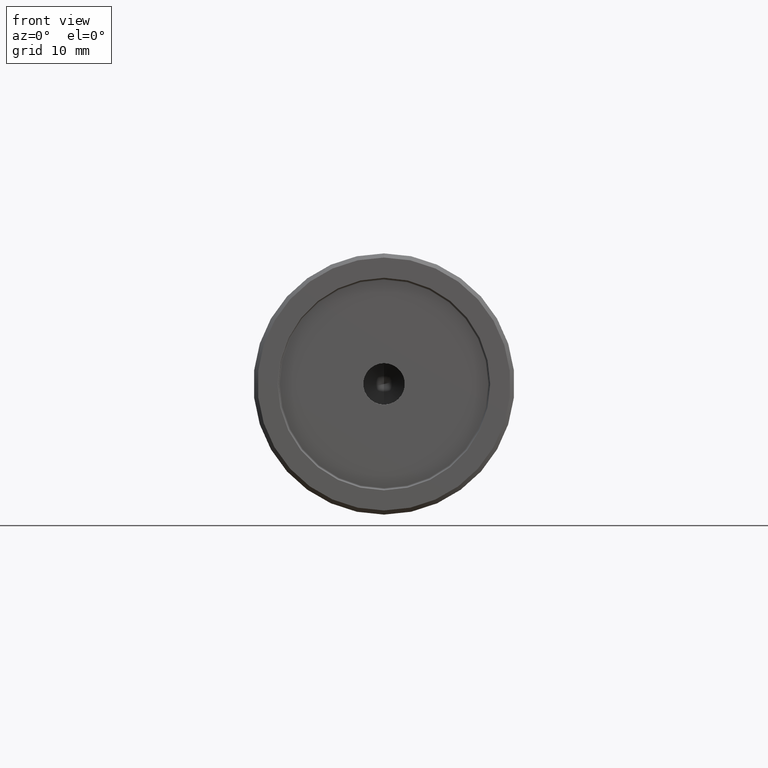
[diagram: clean part render]
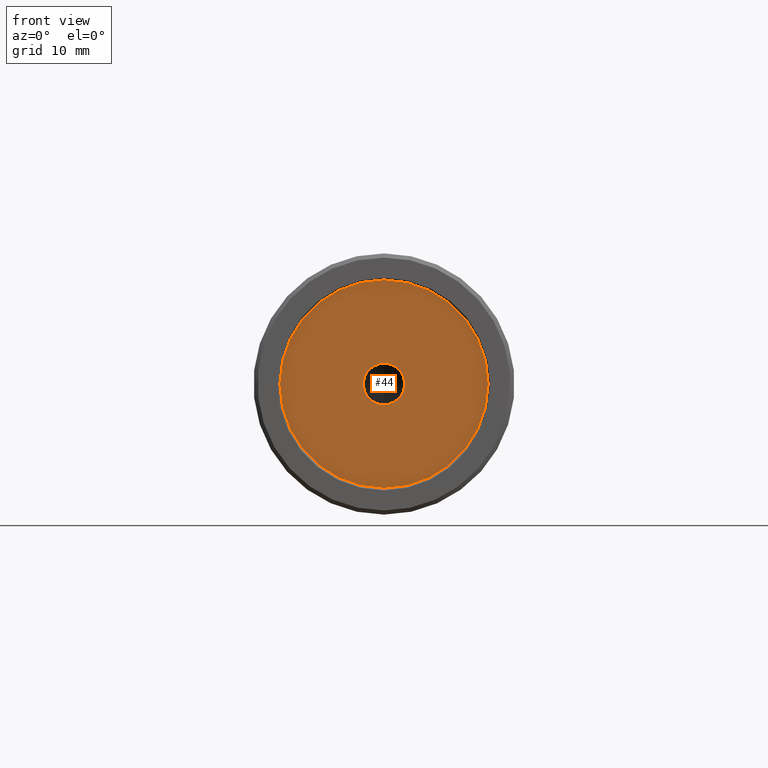
[diagram: same view with one face highlighted and labeled with its STEP entity id]
A machine part, front view. The second image highlights one B-rep face of the part: STEP entity #44.
In plain terms, the highlighted planar face has unit normal (0, 1, 0).
Its self-contained STEP definition (entity closure, byte-faithful):
#44 = ADVANCED_FACE ( 'NONE', ( #284, #261 ), #275, .F. ) ;
#60 = CARTESIAN_POINT ( 'NONE',  ( 0.000000000000000000, 0.5000000000000004441, 0.000000000000000000 ) ) ;
#66 = DIRECTION ( 'NONE',  ( -0.000000000000000000, -1.000000000000000000, -0.000000000000000000 ) ) ;
#85 = VERTEX_POINT ( 'NONE', #1016 ) ;
#115 = ORIENTED_EDGE ( 'NONE', *, *, #527, .T. ) ;
#117 = AXIS2_PLACEMENT_3D ( 'NONE', #1091, #1098, #1117 ) ;
#151 = DIRECTION ( 'NONE',  ( 0.000000000000000000, -0.000000000000000000, 1.000000000000000000 ) ) ;
#152 = CARTESIAN_POINT ( 'NONE',  ( 0.000000000000000000, 0.5000000000000002220, -2.499999999999998224 ) ) ;
#177 = AXIS2_PLACEMENT_3D ( 'NONE', #60, #66, #481 ) ;
#227 = CIRCLE ( 'NONE', #117, 12.54999999999999893 ) ;
#259 = DIRECTION ( 'NONE',  ( 0.000000000000000000, 1.000000000000000000, 0.000000000000000000 ) ) ;
#261 = FACE_OUTER_BOUND ( 'NONE', #1127, .T. ) ;
#268 = CARTESIAN_POINT ( 'NONE',  ( -12.54999999999999893, 0.5000000000000002220, 0.000000000000000000 ) ) ;
#275 = PLANE ( 'NONE',  #329 ) ;
#284 = FACE_BOUND ( 'NONE', #943, .T. ) ;
#297 = VERTEX_POINT ( 'NONE', #983 ) ;
#310 = CIRCLE ( 'NONE', #177, 12.54999999999999893 ) ;
#325 = EDGE_CURVE ( 'NONE', #397, #297, #227, .T. ) ;
#327 = ORIENTED_EDGE ( 'NONE', *, *, #1012, .T. ) ;
#329 = AXIS2_PLACEMENT_3D ( 'NONE', #268, #1318, #151 ) ;
#375 = DIRECTION ( 'NONE',  ( 0.000000000000000000, 0.000000000000000000, 1.000000000000000000 ) ) ;
#397 = VERTEX_POINT ( 'NONE', #483 ) ;
#415 = EDGE_CURVE ( 'NONE', #985, #85, #569, .T. ) ;
#418 = AXIS2_PLACEMENT_3D ( 'NONE', #692, #259, #375 ) ;
#481 = DIRECTION ( 'NONE',  ( 0.000000000000000000, 0.000000000000000000, -1.000000000000000000 ) ) ;
#483 = CARTESIAN_POINT ( 'NONE',  ( 1.549178200921401754E-15, 0.5000000000000004441, 12.54999999999999893 ) ) ;
#501 = ORIENTED_EDGE ( 'NONE', *, *, #325, .T. ) ;
#521 = CIRCLE ( 'NONE', #821, 2.499999999999998224 ) ;
#527 = EDGE_CURVE ( 'NONE', #297, #397, #310, .T. ) ;
#569 = CIRCLE ( 'NONE', #418, 2.499999999999998224 ) ;
#692 = CARTESIAN_POINT ( 'NONE',  ( 0.000000000000000000, 0.5000000000000002220, 0.000000000000000000 ) ) ;
#768 = CARTESIAN_POINT ( 'NONE',  ( 0.000000000000000000, 0.5000000000000002220, 0.000000000000000000 ) ) ;
#795 = ORIENTED_EDGE ( 'NONE', *, *, #415, .T. ) ;
#821 = AXIS2_PLACEMENT_3D ( 'NONE', #768, #1327, #885 ) ;
#885 = DIRECTION ( 'NONE',  ( 0.000000000000000000, 0.000000000000000000, 1.000000000000000000 ) ) ;
#943 = EDGE_LOOP ( 'NONE', ( #795, #327 ) ) ;
#983 = CARTESIAN_POINT ( 'NONE',  ( 0.000000000000000000, 0.5000000000000004441, -12.54999999999999893 ) ) ;
#985 = VERTEX_POINT ( 'NONE', #152 ) ;
#1012 = EDGE_CURVE ( 'NONE', #85, #985, #521, .T. ) ;
#1016 = CARTESIAN_POINT ( 'NONE',  ( 3.061616997868381169E-16, 0.5000000000000002220, 2.499999999999998224 ) ) ;
#1091 = CARTESIAN_POINT ( 'NONE',  ( 0.000000000000000000, 0.5000000000000004441, 0.000000000000000000 ) ) ;
#1098 = DIRECTION ( 'NONE',  ( -0.000000000000000000, -1.000000000000000000, -0.000000000000000000 ) ) ;
#1117 = DIRECTION ( 'NONE',  ( 0.000000000000000000, 0.000000000000000000, -1.000000000000000000 ) ) ;
#1127 = EDGE_LOOP ( 'NONE', ( #115, #501 ) ) ;
#1318 = DIRECTION ( 'NONE',  ( 0.000000000000000000, 1.000000000000000000, 0.000000000000000000 ) ) ;
#1327 = DIRECTION ( 'NONE',  ( 0.000000000000000000, 1.000000000000000000, 0.000000000000000000 ) ) ;